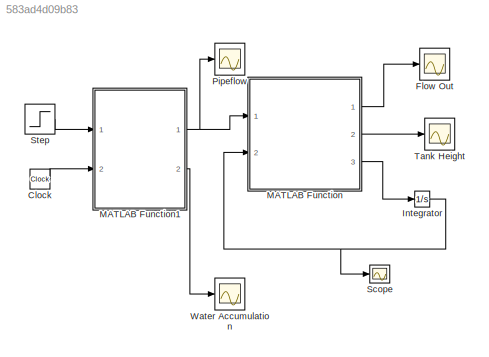
MODEL slx_583ad4d09b83
KIND model
CONFIG AbsTol = auto
CONFIG EnableMultiTasking = off
CONFIG FixedStep = auto
CONFIG MaxStep = auto
CONFIG MinStep = auto
CONFIG RelTol = 1e-3
CONFIG SampleTimeConstraint = Unconstrained
CONFIG SolverName = VariableStepAuto
CONFIG StartTime = 0.0
CONFIG StopTime = 20
BLOCK [Scope]  Pipeflow
  Floating = off
  NumInputPorts = 1
  Ports = [1]
  ScopeSpecificationString = Simulink.scopes.TimeScopeBlockCfg('CurrentConfiguration', extmgr.ConfigurationSet(extmgr.Configuration('Core','General UI',true),extmgr.Configuration('Core','Source UI',true),extmgr.Configuration('Sources','WiredSimulink',true,'DataLoggingVariableName','ScopeData3'),extmgr.Configuration('Visuals','Time Domain',true,'SerializedDisplays',{struct('MinYLimReal','-1.30398','MaxYLimReal','11.73583','YLa...<+1417ch>
BLOCK [Clock] Clock
BLOCK [Scope] Flow Out
  Floating = off
  NumInputPorts = 1
  Ports = [1]
  ScopeSpecificationString = Simulink.scopes.TimeScopeBlockCfg('CurrentConfiguration', extmgr.ConfigurationSet(extmgr.Configuration('Core','General UI',true),extmgr.Configuration('Core','Source UI',true),extmgr.Configuration('Sources','WiredSimulink',true,'DataLoggingVariableName','ScopeData1'),extmgr.Configuration('Visuals','Time Domain',true,'SerializedDisplays',{struct('MinYLimReal','5.16162','MaxYLimReal','8.69919','YLabe...<+1406ch>
BLOCK [Integrator] Integrator
  InitialCondition = 70
  Ports = [1, 1]
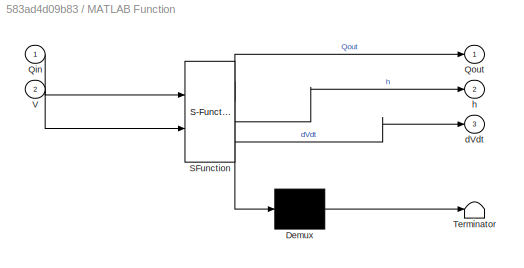
BLOCK [SubSystem] MATLAB Function
  ErrorFcn = Stateflow.Translate.translate
  PermitHierarchicalResolution = ExplicitOnly
  Ports = [2, 3]
  RequestExecContextInheritance = off
  SFBlockType = MATLAB Function
  TreatAsAtomicUnit = on
BLOCK [Demux] MATLAB Function/ Demux 
  Outputs = 1
  Ports = [1, 1]
BLOCK [S-Function] MATLAB Function/ SFunction 
  EnableBusSupport = on
  FunctionName = sf_sfun
  Parameters = C,d
  PortCounts = [2 4]
  Ports = [2, 4]
  SFcnIsStateOwnerBlock = off
  SFunctionDeploymentMode = off
  Tag = Stateflow S-Function 2
BLOCK [Terminator] MATLAB Function/ Terminator 
BLOCK [Inport] MATLAB Function/Qin
BLOCK [Outport] MATLAB Function/Qout
BLOCK [Inport] MATLAB Function/V
  Port = 2
BLOCK [Outport] MATLAB Function/dVdt
  Port = 3
BLOCK [Outport] MATLAB Function/h
  Port = 2
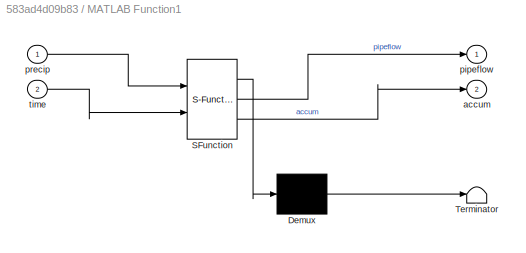
BLOCK [SubSystem] MATLAB Function1
  ErrorFcn = Stateflow.Translate.translate
  PermitHierarchicalResolution = ExplicitOnly
  Ports = [2, 2]
  RequestExecContextInheritance = off
  SFBlockType = MATLAB Function
  TreatAsAtomicUnit = on
BLOCK [Demux] MATLAB Function1/ Demux 
  Outputs = 1
  Ports = [1, 1]
BLOCK [S-Function] MATLAB Function1/ SFunction 
  EnableBusSupport = on
  FunctionName = sf_sfun
  Parameters = R,S,basin1,k,n
  PortCounts = [2 3]
  Ports = [2, 3]
  SFcnIsStateOwnerBlock = off
  SFunctionDeploymentMode = off
  Tag = Stateflow S-Function 1
BLOCK [Terminator] MATLAB Function1/ Terminator 
BLOCK [Outport] MATLAB Function1/accum
  Port = 2
BLOCK [Outport] MATLAB Function1/pipeflow
BLOCK [Inport] MATLAB Function1/precip
BLOCK [Inport] MATLAB Function1/time
  Port = 2
BLOCK [Scope] Scope
  Floating = off
  NumInputPorts = 1
  Ports = [1]
  ScopeSpecificationString = Simulink.scopes.TimeScopeBlockCfg('CurrentConfiguration', extmgr.ConfigurationSet(extmgr.Configuration('Core','General UI',true),extmgr.Configuration('Core','Source UI',true),extmgr.Configuration('Sources','WiredSimulink',true),extmgr.Configuration('Visuals','Time Domain',true,'SerializedDisplays',{struct('MinYLimReal','31.31283','MaxYLimReal','91.48622','YLabelReal','','MinYLimMag','31.31283','Ma...<+1365ch>
BLOCK [Step] Step
  After = 0.002
  SampleTime = 0
  Time = 5
BLOCK [Scope] Tank Height
  Floating = off
  NumInputPorts = 1
  Ports = [1]
  ScopeSpecificationString = Simulink.scopes.TimeScopeBlockCfg('CurrentConfiguration', extmgr.ConfigurationSet(extmgr.Configuration('Core','General UI',true),extmgr.Configuration('Core','Source UI',true),extmgr.Configuration('Sources','WiredSimulink',true,'DataLoggingVariableName','ScopeData2'),extmgr.Configuration('Visuals','Time Domain',true,'SerializedDisplays',{struct('MinYLimReal','2.4918','MaxYLimReal','7.28024','YLabel...<+1370ch>
BLOCK [Scope] Water Accumulation
  Floating = off
  NumInputPorts = 1
  Ports = [1]
  ScopeSpecificationString = Simulink.scopes.TimeScopeBlockCfg('CurrentConfiguration', extmgr.ConfigurationSet(extmgr.Configuration('Core','General UI',true),extmgr.Configuration('Core','Source UI',true),extmgr.Configuration('Sources','WiredSimulink',true,'DataLoggingVariableName','ScopeData4'),extmgr.Configuration('Visuals','Time Domain',true,'SerializedDisplays',{struct('MinYLimReal','-12923.92038','MaxYLimReal','116315.283...<+1444ch>
LINE Clock:1 -> MATLAB Function1:2
NET Integrator:1 -> MATLAB Function:2, Scope:1
NET MATLAB Function1:1 ->  Pipeflow:1, MATLAB Function:1
LINE MATLAB Function1:2 -> Water Accumulation:1
LINE MATLAB Function:1 -> Flow Out:1
LINE MATLAB Function:2 -> Tank Height:1
LINE MATLAB Function:3 -> Integrator:1
LINE Step:1 -> MATLAB Function1:1
note: NET lines group one-source signal fan-out (src -> all destinations, sorted); 1:1 wires keep LINE
CHART MATLAB Function1 states=1 transitions=1
  STATE_LABEL 'eML_blk_kernel()'
  STATE_LABEL 'SCRIPT:\nfunction [pipeflow, accum]  = pipeflow(precip, k, n, R, S, basin1, time)\n% v = k*n*R^0.63*S^.54\n% cross sectional area: pi*r^2\n% v = velocity; n = roughness; R = hydraulic radius; S = slope; k =\n% conversions\n\nv = k*n*R^0.63*S^.54; %should be \nAx = pi*R^2;\npipeflowMax = v*Ax; %pipe flow out is 4.82 m3/s\n% if water coming in is below max, it flows in normally\n% if above max, then it flows a...<+444ch>'
CHART MATLAB Function states=1 transitions=1
  STATE_LABEL 'eML_blk_kernel()'
  STATE_LABEL 'SCRIPT:\nfunction [Qout, h, dVdt] = tank(Qin, V, d, C)\n% Qin = flow rate in in inches per time\n% V = volume\n% Ax = cross sectional area\n\n%%%%%% MY code%%%%%%\n% Qinm = Qin*1.63871*10^(-5); %convert to m^3 per time\n% h = V/Ax; %height of water in tank\n% Qout = C*sqrt(h); %water flowing out m^3/time\n\n%%%%%%% copied code %%%%%%\nAxs = pi/4*d^2;\nh = V/Axs;\nQout = C*sqrt(h);\ndVdt = Qin - Qout; %change in ...<+71ch>'
CHART  states=0 transitions=0
CHART  states=0 transitions=0
